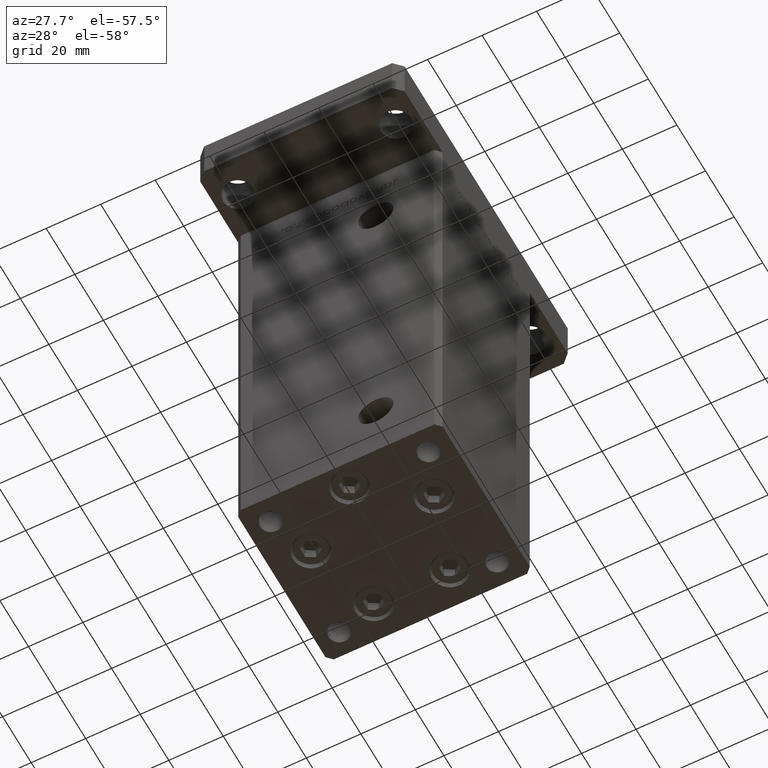
[diagram: clean part render]
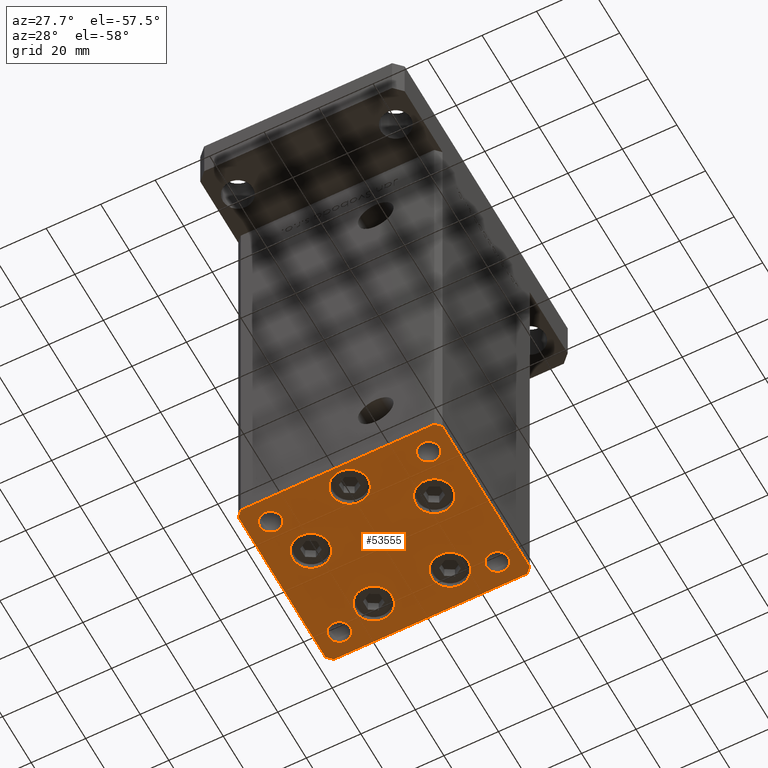
[diagram: same view with one face highlighted and labeled with its STEP entity id]
A machine part, auxiliary view. The second image highlights one B-rep face of the part: STEP entity #53555.
In plain terms, the highlighted planar face has unit normal (0, 0, -1).
Its self-contained STEP definition (entity closure, byte-faithful):
#33 = EDGE_CURVE ( 'NONE', #47072, #51597, #1025, .T. ) ;
#579 = DIRECTION ( 'NONE',  ( 0.000000000000000000, -0.000000000000000000, -1.000000000000000000 ) ) ;
#614 = CARTESIAN_POINT ( 'NONE',  ( 37.50000000000001421, -30.50000000000000711, 0.000000000000000000 ) ) ;
#1025 = CIRCLE ( 'NONE', #46875, 3.999999999999996447 ) ;
#1144 = DIRECTION ( 'NONE',  ( 1.000000000000000000, 0.000000000000000000, 0.000000000000000000 ) ) ;
#1148 = ORIENTED_EDGE ( 'NONE', *, *, #30240, .T. ) ;
#1639 = CARTESIAN_POINT ( 'NONE',  ( 25.00000000000000711, 24.00000000000000711, 0.000000000000000000 ) ) ;
#1672 = CARTESIAN_POINT ( 'NONE',  ( -37.49999999999998579, -30.50000000000001421, 0.000000000000000000 ) ) ;
#2033 = ORIENTED_EDGE ( 'NONE', *, *, #5131, .T. ) ;
#2319 = DIRECTION ( 'NONE',  ( 0.000000000000000000, -0.000000000000000000, -1.000000000000000000 ) ) ;
#2755 = AXIS2_PLACEMENT_3D ( 'NONE', #51339, #29952, #47275 ) ;
#2834 = VERTEX_POINT ( 'NONE', #11238 ) ;
#2931 = ORIENTED_EDGE ( 'NONE', *, *, #37530, .T. ) ;
#3077 = FACE_BOUND ( 'NONE', #5076, .T. ) ;
#3433 = DIRECTION ( 'NONE',  ( -0.000000000000000000, 0.000000000000000000, 1.000000000000000000 ) ) ;
#3613 = FACE_BOUND ( 'NONE', #8636, .T. ) ;
#4143 = DIRECTION ( 'NONE',  ( 1.000000000000000000, 0.000000000000000000, 0.000000000000000000 ) ) ;
#4232 = ORIENTED_EDGE ( 'NONE', *, *, #42467, .T. ) ;
#4480 = CARTESIAN_POINT ( 'NONE',  ( 29.37741699797392769, -8.000000000000000000, 0.000000000000000000 ) ) ;
#4843 = CARTESIAN_POINT ( 'NONE',  ( 29.00000000000001066, 24.00000000000000711, 0.000000000000000000 ) ) ;
#4960 = CARTESIAN_POINT ( 'NONE',  ( 22.62741699796951877, -8.000000000000000000, 0.000000000000000000 ) ) ;
#5076 = EDGE_LOOP ( 'NONE', ( #10178, #4232 ) ) ;
#5120 = CARTESIAN_POINT ( 'NONE',  ( -35.49999999999998579, -32.50000000000001421, 0.000000000000000000 ) ) ;
#5131 = EDGE_CURVE ( 'NONE', #52903, #5402, #22589, .T. ) ;
#5208 = EDGE_LOOP ( 'NONE', ( #1148, #46276, #6816, #31328, #28946, #18911, #11865, #2931 ) ) ;
#5240 = VERTEX_POINT ( 'NONE', #9442 ) ;
#5402 = VERTEX_POINT ( 'NONE', #52777 ) ;
#5638 = EDGE_LOOP ( 'NONE', ( #19917, #33988 ) ) ;
#5645 = CIRCLE ( 'NONE', #50790, 4.000000000000000000 ) ;
#5673 = VERTEX_POINT ( 'NONE', #12240 ) ;
#6169 = CARTESIAN_POINT ( 'NONE',  ( 22.62741699796951877, -8.000000000000000000, 0.000000000000000000 ) ) ;
#6258 = EDGE_CURVE ( 'NONE', #44865, #2834, #12289, .T. ) ;
#6270 = VECTOR ( 'NONE', #33648, 999.9999999999998863 ) ;
#6376 = EDGE_LOOP ( 'NONE', ( #30075, #9912 ) ) ;
#6665 = CIRCLE ( 'NONE', #49993, 6.750000000004410694 ) ;
#6816 = ORIENTED_EDGE ( 'NONE', *, *, #35358, .T. ) ;
#7086 = VERTEX_POINT ( 'NONE', #49844 ) ;
#7567 = EDGE_CURVE ( 'NONE', #39076, #28871, #8356, .T. ) ;
#7902 = CARTESIAN_POINT ( 'NONE',  ( 20.74106857963763062, 19.50000000000000000, 0.000000000000000000 ) ) ;
#7951 = DIRECTION ( 'NONE',  ( 1.000000000000000000, 0.000000000000000000, 0.000000000000000000 ) ) ;
#8008 = DIRECTION ( 'NONE',  ( 0.000000000000000000, -0.000000000000000000, -1.000000000000000000 ) ) ;
#8040 = CARTESIAN_POINT ( 'NONE',  ( 15.87741699796511163, -8.000000000000000000, 0.000000000000000000 ) ) ;
#8140 = VECTOR ( 'NONE', #30371, 1000.000000000000000 ) ;
#8347 = CIRCLE ( 'NONE', #21330, 4.000000000000003553 ) ;
#8356 = CIRCLE ( 'NONE', #43824, 6.750000000004408918 ) ;
#8515 = EDGE_CURVE ( 'NONE', #29839, #7086, #33382, .T. ) ;
#8636 = EDGE_LOOP ( 'NONE', ( #40590, #36719 ) ) ;
#8654 = CARTESIAN_POINT ( 'NONE',  ( -29.00000000000001066, -23.99999999999999289, 0.000000000000000000 ) ) ;
#9442 = CARTESIAN_POINT ( 'NONE',  ( 7.241068579628817226, 19.50000000000000000, 0.000000000000000000 ) ) ;
#9609 = EDGE_CURVE ( 'NONE', #5673, #20136, #53068, .T. ) ;
#9846 = CARTESIAN_POINT ( 'NONE',  ( 2.939152317953647500E-15, -24.00000000000000000, 0.000000000000000000 ) ) ;
#9912 = ORIENTED_EDGE ( 'NONE', *, *, #11868, .F. ) ;
#10033 = CARTESIAN_POINT ( 'NONE',  ( 37.50000000000001421, -30.50000000000000711, 0.000000000000000000 ) ) ;
#10178 = ORIENTED_EDGE ( 'NONE', *, *, #21955, .T. ) ;
#10181 = CARTESIAN_POINT ( 'NONE',  ( 33.00000000000001421, -23.99999999999999289, 0.000000000000000000 ) ) ;
#10248 = DIRECTION ( 'NONE',  ( 1.000000000000000000, 0.000000000000000000, 0.000000000000000000 ) ) ;
#10422 = ORIENTED_EDGE ( 'NONE', *, *, #44353, .F. ) ;
#10682 = ORIENTED_EDGE ( 'NONE', *, *, #9609, .T. ) ;
#11238 = CARTESIAN_POINT ( 'NONE',  ( -7.241068579628817226, 19.49999999999999645, 0.000000000000000000 ) ) ;
#11275 = ORIENTED_EDGE ( 'NONE', *, *, #28593, .T. ) ;
#11583 = VERTEX_POINT ( 'NONE', #614 ) ;
#11865 = ORIENTED_EDGE ( 'NONE', *, *, #53228, .T. ) ;
#11868 = EDGE_CURVE ( 'NONE', #49750, #29333, #33230, .T. ) ;
#11928 = VERTEX_POINT ( 'NONE', #15092 ) ;
#12028 = FACE_BOUND ( 'NONE', #36518, .T. ) ;
#12240 = CARTESIAN_POINT ( 'NONE',  ( -6.750000000004408029, -24.00000000000000000, 0.000000000000000000 ) ) ;
#12289 = CIRCLE ( 'NONE', #2755, 6.750000000004410694 ) ;
#12336 = EDGE_CURVE ( 'NONE', #11583, #29839, #18694, .T. ) ;
#12350 = VECTOR ( 'NONE', #31354, 1000.000000000000000 ) ;
#12752 = AXIS2_PLACEMENT_3D ( 'NONE', #6169, #47107, #30566 ) ;
#13058 = DIRECTION ( 'NONE',  ( 1.000000000000000000, 0.000000000000000000, 0.000000000000000000 ) ) ;
#13926 = EDGE_CURVE ( 'NONE', #7086, #46591, #17713, .T. ) ;
#14406 = LINE ( 'NONE', #1672, #16374 ) ;
#14811 = CARTESIAN_POINT ( 'NONE',  ( -35.49999999999998579, -32.50000000000001421, 0.000000000000000000 ) ) ;
#15092 = CARTESIAN_POINT ( 'NONE',  ( 25.00000000000000711, -23.99999999999999289, 0.000000000000000000 ) ) ;
#15529 = CARTESIAN_POINT ( 'NONE',  ( 0.000000000000000000, 0.000000000000000000, 0.000000000000000000 ) ) ;
#15962 = DIRECTION ( 'NONE',  ( 1.000000000000000000, 0.000000000000000000, 0.000000000000000000 ) ) ;
#16191 = EDGE_CURVE ( 'NONE', #23558, #5240, #50671, .T. ) ;
#16200 = DIRECTION ( 'NONE',  ( 0.000000000000000000, -0.000000000000000000, -1.000000000000000000 ) ) ;
#16209 = VERTEX_POINT ( 'NONE', #33058 ) ;
#16374 = VECTOR ( 'NONE', #26606, 1000.000000000000114 ) ;
#17147 = CARTESIAN_POINT ( 'NONE',  ( -37.49999999999998579, -30.50000000000001421, 0.000000000000000000 ) ) ;
#17686 = VECTOR ( 'NONE', #30452, 1000.000000000000000 ) ;
#17713 = LINE ( 'NONE', #30197, #17686 ) ;
#17736 = CARTESIAN_POINT ( 'NONE',  ( 37.49999999999992184, 30.50000000000001066, 0.000000000000000000 ) ) ;
#18347 = DIRECTION ( 'NONE',  ( 1.000000000000000000, 0.000000000000000000, 0.000000000000000000 ) ) ;
#18394 = DIRECTION ( 'NONE',  ( -0.000000000000000000, 0.000000000000000000, 1.000000000000000000 ) ) ;
#18573 = CARTESIAN_POINT ( 'NONE',  ( 29.00000000000001066, -23.99999999999999289, 0.000000000000000000 ) ) ;
#18694 = LINE ( 'NONE', #10033, #8140 ) ;
#18911 = ORIENTED_EDGE ( 'NONE', *, *, #13926, .T. ) ;
#19109 = VECTOR ( 'NONE', #34773, 1000.000000000000000 ) ;
#19168 = DIRECTION ( 'NONE',  ( 0.000000000000000000, -0.000000000000000000, -1.000000000000000000 ) ) ;
#19248 = VECTOR ( 'NONE', #22791, 1000.000000000000000 ) ;
#19257 = CARTESIAN_POINT ( 'NONE',  ( 33.00000000000001421, 24.00000000000000711, 0.000000000000000000 ) ) ;
#19311 = AXIS2_PLACEMENT_3D ( 'NONE', #9846, #30718, #47259 ) ;
#19430 = EDGE_CURVE ( 'NONE', #25394, #11928, #8347, .T. ) ;
#19917 = ORIENTED_EDGE ( 'NONE', *, *, #6258, .T. ) ;
#19923 = AXIS2_PLACEMENT_3D ( 'NONE', #40017, #3433, #41102 ) ;
#20117 = CARTESIAN_POINT ( 'NONE',  ( -35.50000000000002842, 32.49999999999999289, 0.000000000000000000 ) ) ;
#20136 = VERTEX_POINT ( 'NONE', #25646 ) ;
#20144 = FACE_BOUND ( 'NONE', #26528, .T. ) ;
#20837 = EDGE_CURVE ( 'NONE', #5402, #52903, #5645, .T. ) ;
#21024 = CARTESIAN_POINT ( 'NONE',  ( -25.00000000000001421, 24.00000000000000711, 0.000000000000000000 ) ) ;
#21170 = CARTESIAN_POINT ( 'NONE',  ( -29.00000000000001066, -23.99999999999999289, 0.000000000000000000 ) ) ;
#21330 = AXIS2_PLACEMENT_3D ( 'NONE', #18573, #2319, #44057 ) ;
#21350 = CARTESIAN_POINT ( 'NONE',  ( -15.87741699796510808, -8.000000000000005329, 0.000000000000000000 ) ) ;
#21672 = DIRECTION ( 'NONE',  ( 0.000000000000000000, -0.000000000000000000, -1.000000000000000000 ) ) ;
#21955 = EDGE_CURVE ( 'NONE', #32409, #30791, #40318, .T. ) ;
#22028 = CIRCLE ( 'NONE', #53199, 3.999999999999996447 ) ;
#22589 = CIRCLE ( 'NONE', #26938, 4.000000000000000000 ) ;
#22791 = DIRECTION ( 'NONE',  ( 4.550094363217855288E-16, -1.000000000000000000, 0.000000000000000000 ) ) ;
#23082 = CARTESIAN_POINT ( 'NONE',  ( -20.74106857963763773, 19.49999999999999645, 0.000000000000000000 ) ) ;
#23083 = ORIENTED_EDGE ( 'NONE', *, *, #33, .F. ) ;
#23313 = LINE ( 'NONE', #41213, #34318 ) ;
#23558 = VERTEX_POINT ( 'NONE', #7902 ) ;
#23660 = FACE_BOUND ( 'NONE', #25189, .T. ) ;
#24541 = CARTESIAN_POINT ( 'NONE',  ( 2.939152317953647500E-15, -24.00000000000000000, 0.000000000000000000 ) ) ;
#24742 = CARTESIAN_POINT ( 'NONE',  ( 13.99106857963322348, 19.50000000000000000, 0.000000000000000000 ) ) ;
#24890 = VERTEX_POINT ( 'NONE', #5120 ) ;
#25034 = EDGE_CURVE ( 'NONE', #28871, #39076, #35249, .T. ) ;
#25087 = AXIS2_PLACEMENT_3D ( 'NONE', #24742, #41277, #4143 ) ;
#25189 = EDGE_LOOP ( 'NONE', ( #45921, #41152 ) ) ;
#25271 = EDGE_CURVE ( 'NONE', #2834, #44865, #6665, .T. ) ;
#25394 = VERTEX_POINT ( 'NONE', #10181 ) ;
#25646 = CARTESIAN_POINT ( 'NONE',  ( 6.750000000004413359, -24.00000000000000000, 0.000000000000000000 ) ) ;
#26528 = EDGE_LOOP ( 'NONE', ( #48394, #2033 ) ) ;
#26606 = DIRECTION ( 'NONE',  ( 0.7071067811865474617, -0.7071067811865474617, 0.000000000000000000 ) ) ;
#26688 = CIRCLE ( 'NONE', #43997, 6.750000000004410694 ) ;
#26938 = AXIS2_PLACEMENT_3D ( 'NONE', #8654, #46304, #29251 ) ;
#27218 = CARTESIAN_POINT ( 'NONE',  ( -29.00000000000001066, 24.00000000000000711, 0.000000000000000000 ) ) ;
#27736 = DIRECTION ( 'NONE',  ( -0.000000000000000000, 0.000000000000000000, 1.000000000000000000 ) ) ;
#28593 = EDGE_CURVE ( 'NONE', #20136, #5673, #26688, .T. ) ;
#28871 = VERTEX_POINT ( 'NONE', #4480 ) ;
#28946 = ORIENTED_EDGE ( 'NONE', *, *, #8515, .T. ) ;
#29080 = VERTEX_POINT ( 'NONE', #17147 ) ;
#29251 = DIRECTION ( 'NONE',  ( 1.000000000000000000, 0.000000000000000000, 0.000000000000000000 ) ) ;
#29333 = VERTEX_POINT ( 'NONE', #19257 ) ;
#29357 = CARTESIAN_POINT ( 'NONE',  ( -33.00000000000000711, -23.99999999999999289, 0.000000000000000000 ) ) ;
#29839 = VERTEX_POINT ( 'NONE', #17736 ) ;
#29952 = DIRECTION ( 'NONE',  ( 0.000000000000000000, -0.000000000000000000, -1.000000000000000000 ) ) ;
#29983 = AXIS2_PLACEMENT_3D ( 'NONE', #15529, #27736, #7951 ) ;
#30075 = ORIENTED_EDGE ( 'NONE', *, *, #34289, .F. ) ;
#30197 = CARTESIAN_POINT ( 'NONE',  ( 35.49999999999992184, 32.50000000000000711, 0.000000000000000000 ) ) ;
#30240 = EDGE_CURVE ( 'NONE', #29080, #24890, #14406, .T. ) ;
#30371 = DIRECTION ( 'NONE',  ( -1.478780668045802821E-15, 1.000000000000000000, 0.000000000000000000 ) ) ;
#30452 = DIRECTION ( 'NONE',  ( -1.000000000000000000, -1.954618001100629052E-16, 0.000000000000000000 ) ) ;
#30566 = DIRECTION ( 'NONE',  ( 1.000000000000000000, 0.000000000000000000, 0.000000000000000000 ) ) ;
#30605 = DIRECTION ( 'NONE',  ( 1.000000000000000000, 0.000000000000000000, 0.000000000000000000 ) ) ;
#30718 = DIRECTION ( 'NONE',  ( 0.000000000000000000, -0.000000000000000000, -1.000000000000000000 ) ) ;
#30791 = VERTEX_POINT ( 'NONE', #21350 ) ;
#31085 = LINE ( 'NONE', #14811, #12350 ) ;
#31328 = ORIENTED_EDGE ( 'NONE', *, *, #12336, .T. ) ;
#31354 = DIRECTION ( 'NONE',  ( 1.000000000000000000, 9.773090005503140331E-17, 0.000000000000000000 ) ) ;
#31543 = EDGE_LOOP ( 'NONE', ( #44883, #53218 ) ) ;
#32409 = VERTEX_POINT ( 'NONE', #34137 ) ;
#32824 = EDGE_CURVE ( 'NONE', #5240, #23558, #44107, .T. ) ;
#33058 = CARTESIAN_POINT ( 'NONE',  ( -37.50000000000001421, 30.49999999999998579, 0.000000000000000000 ) ) ;
#33230 = CIRCLE ( 'NONE', #48765, 4.000000000000003553 ) ;
#33382 = LINE ( 'NONE', #37432, #6270 ) ;
#33521 = CIRCLE ( 'NONE', #40409, 4.000000000000003553 ) ;
#33648 = DIRECTION ( 'NONE',  ( -0.7071067811865482389, 0.7071067811865469066, 0.000000000000000000 ) ) ;
#33988 = ORIENTED_EDGE ( 'NONE', *, *, #25271, .T. ) ;
#34033 = CARTESIAN_POINT ( 'NONE',  ( -37.50000000000001421, 30.49999999999998579, 0.000000000000000000 ) ) ;
#34137 = CARTESIAN_POINT ( 'NONE',  ( -29.37741699797393125, -8.000000000000005329, 0.000000000000000000 ) ) ;
#34289 = EDGE_CURVE ( 'NONE', #29333, #49750, #37273, .T. ) ;
#34318 = VECTOR ( 'NONE', #46073, 1000.000000000000000 ) ;
#34773 = DIRECTION ( 'NONE',  ( 0.7071067811865487940, 0.7071067811865463515, 0.000000000000000000 ) ) ;
#35249 = CIRCLE ( 'NONE', #12752, 6.750000000004408918 ) ;
#35358 = EDGE_CURVE ( 'NONE', #45212, #11583, #51577, .T. ) ;
#35702 = DIRECTION ( 'NONE',  ( 1.000000000000000000, 0.000000000000000000, 0.000000000000000000 ) ) ;
#36254 = CARTESIAN_POINT ( 'NONE',  ( -22.62741699796951877, -8.000000000000005329, 0.000000000000000000 ) ) ;
#36518 = EDGE_LOOP ( 'NONE', ( #10682, #11275 ) ) ;
#36673 = AXIS2_PLACEMENT_3D ( 'NONE', #36254, #16200, #40867 ) ;
#36719 = ORIENTED_EDGE ( 'NONE', *, *, #25034, .T. ) ;
#36804 = AXIS2_PLACEMENT_3D ( 'NONE', #48776, #53110, #15962 ) ;
#37227 = DIRECTION ( 'NONE',  ( 0.000000000000000000, -0.000000000000000000, -1.000000000000000000 ) ) ;
#37273 = CIRCLE ( 'NONE', #19923, 4.000000000000003553 ) ;
#37432 = CARTESIAN_POINT ( 'NONE',  ( 37.49999999999992184, 30.50000000000001066, 0.000000000000000000 ) ) ;
#37530 = EDGE_CURVE ( 'NONE', #16209, #29080, #37833, .T. ) ;
#37699 = CARTESIAN_POINT ( 'NONE',  ( 29.00000000000001066, -23.99999999999999289, 0.000000000000000000 ) ) ;
#37833 = LINE ( 'NONE', #34033, #19248 ) ;
#37916 = DIRECTION ( 'NONE',  ( -0.000000000000000000, 0.000000000000000000, 1.000000000000000000 ) ) ;
#37935 = CARTESIAN_POINT ( 'NONE',  ( -22.62741699796951877, -8.000000000000005329, 0.000000000000000000 ) ) ;
#38117 = EDGE_CURVE ( 'NONE', #24890, #45212, #31085, .T. ) ;
#39076 = VERTEX_POINT ( 'NONE', #8040 ) ;
#39778 = CARTESIAN_POINT ( 'NONE',  ( -13.99106857963322703, 19.49999999999999645, 0.000000000000000000 ) ) ;
#39939 = PLANE ( 'NONE',  #29983 ) ;
#40017 = CARTESIAN_POINT ( 'NONE',  ( 29.00000000000001066, 24.00000000000000711, 0.000000000000000000 ) ) ;
#40260 = DIRECTION ( 'NONE',  ( 1.000000000000000000, 0.000000000000000000, 0.000000000000000000 ) ) ;
#40318 = CIRCLE ( 'NONE', #47252, 6.750000000004412470 ) ;
#40409 = AXIS2_PLACEMENT_3D ( 'NONE', #37699, #21672, #41758 ) ;
#40473 = FACE_OUTER_BOUND ( 'NONE', #5208, .T. ) ;
#40486 = DIRECTION ( 'NONE',  ( -0.000000000000000000, 0.000000000000000000, 1.000000000000000000 ) ) ;
#40590 = ORIENTED_EDGE ( 'NONE', *, *, #7567, .T. ) ;
#40867 = DIRECTION ( 'NONE',  ( 1.000000000000000000, 0.000000000000000000, 0.000000000000000000 ) ) ;
#41015 = CIRCLE ( 'NONE', #36673, 6.750000000004412470 ) ;
#41102 = DIRECTION ( 'NONE',  ( 1.000000000000000000, 0.000000000000000000, 0.000000000000000000 ) ) ;
#41152 = ORIENTED_EDGE ( 'NONE', *, *, #16191, .T. ) ;
#41213 = CARTESIAN_POINT ( 'NONE',  ( -35.50000000000002842, 32.49999999999999289, 0.000000000000000000 ) ) ;
#41277 = DIRECTION ( 'NONE',  ( 0.000000000000000000, -0.000000000000000000, -1.000000000000000000 ) ) ;
#41758 = DIRECTION ( 'NONE',  ( 1.000000000000000000, 0.000000000000000000, 0.000000000000000000 ) ) ;
#42467 = EDGE_CURVE ( 'NONE', #30791, #32409, #41015, .T. ) ;
#43703 = CARTESIAN_POINT ( 'NONE',  ( 35.50000000000000711, -32.50000000000000711, 0.000000000000000000 ) ) ;
#43741 = FACE_BOUND ( 'NONE', #5638, .T. ) ;
#43824 = AXIS2_PLACEMENT_3D ( 'NONE', #4960, #37227, #1144 ) ;
#43997 = AXIS2_PLACEMENT_3D ( 'NONE', #24541, #8008, #40260 ) ;
#44057 = DIRECTION ( 'NONE',  ( 1.000000000000000000, 0.000000000000000000, 0.000000000000000000 ) ) ;
#44107 = CIRCLE ( 'NONE', #25087, 6.750000000004407141 ) ;
#44353 = EDGE_CURVE ( 'NONE', #51597, #47072, #22028, .T. ) ;
#44865 = VERTEX_POINT ( 'NONE', #23082 ) ;
#44883 = ORIENTED_EDGE ( 'NONE', *, *, #19430, .T. ) ;
#45094 = FACE_BOUND ( 'NONE', #31543, .T. ) ;
#45212 = VERTEX_POINT ( 'NONE', #53592 ) ;
#45921 = ORIENTED_EDGE ( 'NONE', *, *, #32824, .T. ) ;
#46073 = DIRECTION ( 'NONE',  ( -0.7071067811865426878, -0.7071067811865524577, 0.000000000000000000 ) ) ;
#46276 = ORIENTED_EDGE ( 'NONE', *, *, #38117, .T. ) ;
#46304 = DIRECTION ( 'NONE',  ( 0.000000000000000000, -0.000000000000000000, -1.000000000000000000 ) ) ;
#46542 = EDGE_LOOP ( 'NONE', ( #23083, #10422 ) ) ;
#46591 = VERTEX_POINT ( 'NONE', #20117 ) ;
#46594 = DIRECTION ( 'NONE',  ( 0.000000000000000000, -0.000000000000000000, -1.000000000000000000 ) ) ;
#46875 = AXIS2_PLACEMENT_3D ( 'NONE', #27218, #40486, #48627 ) ;
#47072 = VERTEX_POINT ( 'NONE', #21024 ) ;
#47107 = DIRECTION ( 'NONE',  ( 0.000000000000000000, -0.000000000000000000, -1.000000000000000000 ) ) ;
#47252 = AXIS2_PLACEMENT_3D ( 'NONE', #37935, #46594, #10248 ) ;
#47259 = DIRECTION ( 'NONE',  ( 1.000000000000000000, 0.000000000000000000, 0.000000000000000000 ) ) ;
#47275 = DIRECTION ( 'NONE',  ( 1.000000000000000000, 0.000000000000000000, 0.000000000000000000 ) ) ;
#48086 = FACE_BOUND ( 'NONE', #6376, .T. ) ;
#48394 = ORIENTED_EDGE ( 'NONE', *, *, #20837, .T. ) ;
#48627 = DIRECTION ( 'NONE',  ( 1.000000000000000000, 0.000000000000000000, 0.000000000000000000 ) ) ;
#48765 = AXIS2_PLACEMENT_3D ( 'NONE', #4843, #37916, #18347 ) ;
#48776 = CARTESIAN_POINT ( 'NONE',  ( 13.99106857963322348, 19.50000000000000000, 0.000000000000000000 ) ) ;
#48888 = FACE_BOUND ( 'NONE', #46542, .T. ) ;
#49374 = CARTESIAN_POINT ( 'NONE',  ( -33.00000000000000711, 24.00000000000000711, 0.000000000000000000 ) ) ;
#49750 = VERTEX_POINT ( 'NONE', #1639 ) ;
#49844 = CARTESIAN_POINT ( 'NONE',  ( 35.49999999999992184, 32.50000000000000711, 0.000000000000000000 ) ) ;
#49993 = AXIS2_PLACEMENT_3D ( 'NONE', #39778, #19168, #35702 ) ;
#50671 = CIRCLE ( 'NONE', #36804, 6.750000000004407141 ) ;
#50790 = AXIS2_PLACEMENT_3D ( 'NONE', #21170, #579, #13058 ) ;
#51214 = CARTESIAN_POINT ( 'NONE',  ( -29.00000000000001066, 24.00000000000000711, 0.000000000000000000 ) ) ;
#51339 = CARTESIAN_POINT ( 'NONE',  ( -13.99106857963322703, 19.49999999999999645, 0.000000000000000000 ) ) ;
#51577 = LINE ( 'NONE', #43703, #19109 ) ;
#51597 = VERTEX_POINT ( 'NONE', #49374 ) ;
#51789 = EDGE_CURVE ( 'NONE', #11928, #25394, #33521, .T. ) ;
#52777 = CARTESIAN_POINT ( 'NONE',  ( -25.00000000000001066, -23.99999999999999289, 0.000000000000000000 ) ) ;
#52903 = VERTEX_POINT ( 'NONE', #29357 ) ;
#53068 = CIRCLE ( 'NONE', #19311, 6.750000000004410694 ) ;
#53110 = DIRECTION ( 'NONE',  ( 0.000000000000000000, -0.000000000000000000, -1.000000000000000000 ) ) ;
#53199 = AXIS2_PLACEMENT_3D ( 'NONE', #51214, #18394, #30605 ) ;
#53218 = ORIENTED_EDGE ( 'NONE', *, *, #51789, .T. ) ;
#53228 = EDGE_CURVE ( 'NONE', #46591, #16209, #23313, .T. ) ;
#53555 = ADVANCED_FACE ( 'NONE', ( #43741, #23660, #3613, #12028, #3077, #48086, #45094, #48888, #40473, #20144 ), #39939, .T. ) ;
#53592 = CARTESIAN_POINT ( 'NONE',  ( 35.50000000000000711, -32.50000000000000711, 0.000000000000000000 ) ) ;